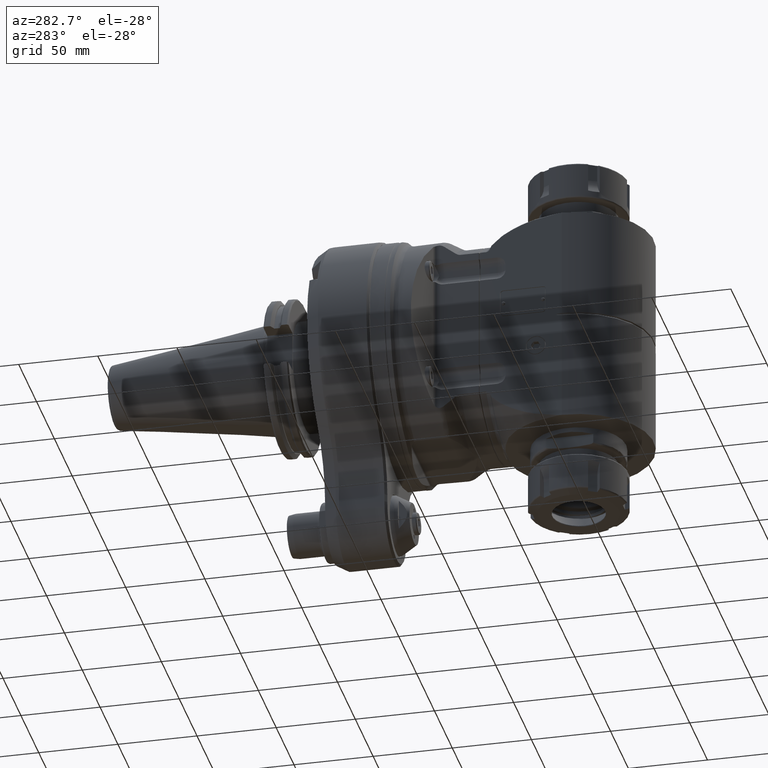
[diagram: clean part render]
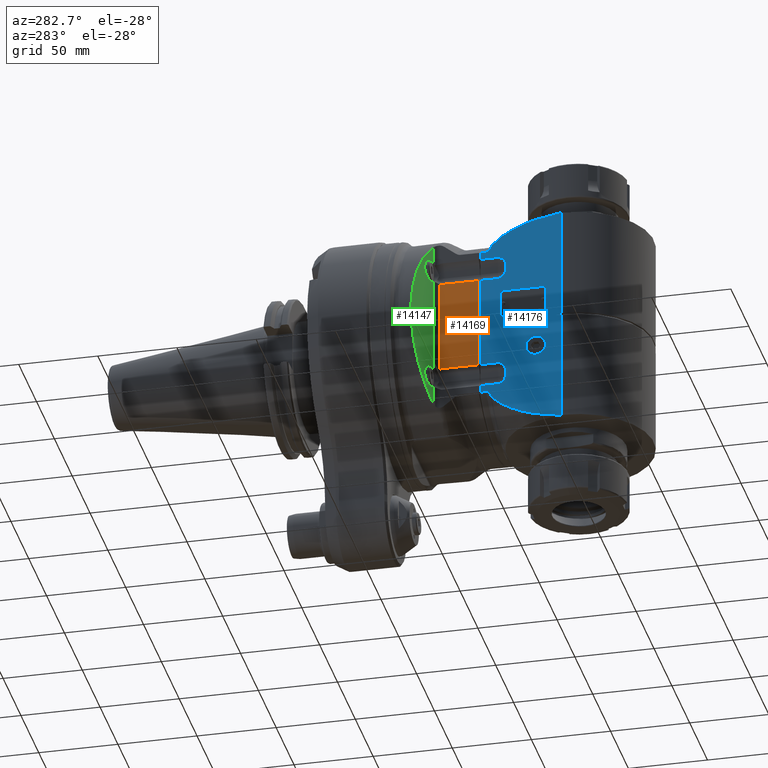
[diagram: same view with three faces highlighted in distinct colors, each labeled with its STEP entity id]
A machine part, auxiliary view with three faces highlighted in distinct colors.
Their STEP definitions:

[orange] entity #14169 — the highlighted planar face has unit normal (1, 0, -0).
#745=LINE('',#21997,#1716);
#746=LINE('',#22002,#1717);
#747=LINE('',#22004,#1718);
#748=LINE('',#22005,#1719);
#1716=VECTOR('',#17058,59.46724184201);
#1717=VECTOR('',#17063,22.5);
#1718=VECTOR('',#17064,58.69397595343);
#1719=VECTOR('',#17065,22.5);
#3030=FACE_OUTER_BOUND('',#3914,.T.);
#3914=EDGE_LOOP('',(#9569,#9570,#9571,#9572,#9573,#9574));
#4874=CIRCLE('',#15152,5.361902647382);
#4876=CIRCLE('',#15156,5.361902647382);
#5777=VERTEX_POINT('',#21968);
#5778=VERTEX_POINT('',#21977);
#5780=VERTEX_POINT('',#21988);
#5781=VERTEX_POINT('',#21999);
#5782=VERTEX_POINT('',#22001);
#5783=VERTEX_POINT('',#22003);
#7235=EDGE_CURVE('',#5778,#5777,#4874,.T.);
#7239=EDGE_CURVE('',#5780,#5777,#745,.T.);
#7240=EDGE_CURVE('',#5781,#5780,#4876,.T.);
#7241=EDGE_CURVE('',#5782,#5781,#746,.T.);
#7242=EDGE_CURVE('',#5782,#5783,#747,.T.);
#7243=EDGE_CURVE('',#5778,#5783,#748,.T.);
#9569=ORIENTED_EDGE('',*,*,#7239,.F.);
#9570=ORIENTED_EDGE('',*,*,#7240,.F.);
#9571=ORIENTED_EDGE('',*,*,#7241,.F.);
#9572=ORIENTED_EDGE('',*,*,#7242,.T.);
#9573=ORIENTED_EDGE('',*,*,#7243,.F.);
#9574=ORIENTED_EDGE('',*,*,#7235,.T.);
#13762=PLANE('',#15155);
#14169=ADVANCED_FACE('',(#3030),#13762,.F.);
#15152=AXIS2_PLACEMENT_3D('',#21978,#17052,#17053);
#15155=AXIS2_PLACEMENT_3D('',#21998,#17059,#17060);
#15156=AXIS2_PLACEMENT_3D('',#22000,#17061,#17062);
#17052=DIRECTION('center_axis',(0.,0.,1.));
#17053=DIRECTION('ref_axis',(1.457685938624E-13,1.,0.));
#17058=DIRECTION('',(0.,-1.,0.));
#17059=DIRECTION('center_axis',(0.,0.,1.));
#17060=DIRECTION('ref_axis',(-1.,0.,0.));
#17061=DIRECTION('center_axis',(0.,0.,-1.));
#17062=DIRECTION('ref_axis',(0.,-1.,0.));
#17063=DIRECTION('',(-0.999999999999998,5.78835255282699E-8,2.381699523034E-8));
#17064=DIRECTION('',(0.,-1.,3.781879605968E-13));
#17065=DIRECTION('',(0.999999999999998,5.78811284728799E-8,-2.381600962862E-8));
#21968=CARTESIAN_POINT('',(16.00083056686,-29.73362092102,-47.5));
#21977=CARTESIAN_POINT('',(18.,-29.34698927909,-47.5));
#21978=CARTESIAN_POINT('Origin',(18.,-34.70889192647,-47.5));
#21988=CARTESIAN_POINT('',(16.00083056686,29.73362092099,-47.5));
#21997=CARTESIAN_POINT('',(16.00083056686,29.73362092099,-47.5));
#21998=CARTESIAN_POINT('Origin',(39.5,-92.4000024,-47.5));
#21999=CARTESIAN_POINT('',(18.,29.34698927905,-47.5));
#22000=CARTESIAN_POINT('Origin',(18.,34.70889192643,-47.5));
#22001=CARTESIAN_POINT('',(40.4999999726826,29.3469887108963,-47.5000004198428));
#22002=CARTESIAN_POINT('',(40.5,29.34698797667,-47.50000053588));
#22003=CARTESIAN_POINT('',(40.4999999726854,-29.3469887109034,-47.500000419852));
#22004=CARTESIAN_POINT('',(40.5,29.34698797667,-47.50000053588));
#22005=CARTESIAN_POINT('',(18.,-29.34698927909,-47.5));

[blue] entity #14176 — the highlighted planar face has unit normal (-1, -0, 0).
#71=(
BOUNDED_CURVE()
B_SPLINE_CURVE(2,(#22041,#22042,#22043),.UNSPECIFIED.,.F.,.F.)
B_SPLINE_CURVE_WITH_KNOTS((3,3),(-9.20850164208115,-8.90663422543069),
 .UNSPECIFIED.)
CURVE()
GEOMETRIC_REPRESENTATION_ITEM()
RATIONAL_B_SPLINE_CURVE((1.06835361669176,1.07059800833599,1.07262179735841))
REPRESENTATION_ITEM('')
);
#72=(
BOUNDED_CURVE()
B_SPLINE_CURVE(2,(#22090,#22091,#22092),.UNSPECIFIED.,.F.,.F.)
B_SPLINE_CURVE_WITH_KNOTS((3,3),(-3.36802403999932,-3.06615662350035),
 .UNSPECIFIED.)
CURVE()
GEOMETRIC_REPRESENTATION_ITEM()
RATIONAL_B_SPLINE_CURVE((1.07262179735842,1.07059800833702,1.06835361669403))
REPRESENTATION_ITEM('')
);
#73=(
BOUNDED_CURVE()
B_SPLINE_CURVE(2,(#22094,#22095,#22096),.UNSPECIFIED.,.F.,.F.)
B_SPLINE_CURVE_WITH_KNOTS((3,3),(-2.32390436076378,-1.40210661032485),
 .UNSPECIFIED.)
CURVE()
GEOMETRIC_REPRESENTATION_ITEM()
RATIONAL_B_SPLINE_CURVE((1.01675488815444,1.01509302587261,1.01211336145827))
REPRESENTATION_ITEM('')
);
#74=(
BOUNDED_CURVE()
B_SPLINE_CURVE(2,(#22098,#22099,#22100),.UNSPECIFIED.,.F.,.F.)
B_SPLINE_CURVE_WITH_KNOTS((3,3),(-2.72627966043904,-1.92831632214769),
 .UNSPECIFIED.)
CURVE()
GEOMETRIC_REPRESENTATION_ITEM()
RATIONAL_B_SPLINE_CURVE((1.00936434365133,1.00907242761187,1.00814915872164))
REPRESENTATION_ITEM('')
);
#75=(
BOUNDED_CURVE()
B_SPLINE_CURVE(2,(#22102,#22103,#22104),.UNSPECIFIED.,.F.,.F.)
B_SPLINE_CURVE_WITH_KNOTS((3,3),(-3.27256923226984,-2.5114985808199),
 .UNSPECIFIED.)
CURVE()
GEOMETRIC_REPRESENTATION_ITEM()
RATIONAL_B_SPLINE_CURVE((1.00574794628003,1.00591953912748,1.00570044610198))
REPRESENTATION_ITEM('')
);
#76=(
BOUNDED_CURVE()
B_SPLINE_CURVE(2,(#22106,#22107,#22108),.UNSPECIFIED.,.F.,.F.)
B_SPLINE_CURVE_WITH_KNOTS((3,3),(-3.83391281879763,-3.06880419830725),
 .UNSPECIFIED.)
CURVE()
GEOMETRIC_REPRESENTATION_ITEM()
RATIONAL_B_SPLINE_CURVE((1.00270433215994,1.00300746067182,1.00308190097846))
REPRESENTATION_ITEM('')
);
#77=(
BOUNDED_CURVE()
B_SPLINE_CURVE(2,(#22110,#22111,#22112),.UNSPECIFIED.,.F.,.F.)
B_SPLINE_CURVE_WITH_KNOTS((3,3),(-5.17434692728903,-3.63606653249885),
 .UNSPECIFIED.)
CURVE()
GEOMETRIC_REPRESENTATION_ITEM()
RATIONAL_B_SPLINE_CURVE((1.0002003382374,1.00072703174868,1.00092285794198))
REPRESENTATION_ITEM('')
);
#78=(
BOUNDED_CURVE()
B_SPLINE_CURVE(2,(#22118,#22119,#22120),.UNSPECIFIED.,.F.,.F.)
B_SPLINE_CURVE_WITH_KNOTS((3,3),(-11.0217033634011,-9.42743535868119),
 .UNSPECIFIED.)
CURVE()
GEOMETRIC_REPRESENTATION_ITEM()
RATIONAL_B_SPLINE_CURVE((4.00690967119323,4.00690967126707,3.94399591643087))
REPRESENTATION_ITEM('')
);
#79=(
BOUNDED_CURVE()
B_SPLINE_CURVE(2,(#22141,#22142,#22143),.UNSPECIFIED.,.F.,.F.)
B_SPLINE_CURVE_WITH_KNOTS((3,3),(-12.6159683156422,-11.0217006697716),
 .UNSPECIFIED.)
CURVE()
GEOMETRIC_REPRESENTATION_ITEM()
RATIONAL_B_SPLINE_CURVE((3.94399510796533,4.00690884813621,4.00690884819256))
REPRESENTATION_ITEM('')
);
#80=(
BOUNDED_CURVE()
B_SPLINE_CURVE(2,(#22149,#22150,#22151),.UNSPECIFIED.,.F.,.F.)
B_SPLINE_CURVE_WITH_KNOTS((3,3),(-1.81518045007262,-0.276900309911036),
 .UNSPECIFIED.)
CURVE()
GEOMETRIC_REPRESENTATION_ITEM()
RATIONAL_B_SPLINE_CURVE((1.00092285718389,1.00072703085831,1.00020033730976))
REPRESENTATION_ITEM('')
);
#81=(
BOUNDED_CURVE()
B_SPLINE_CURVE(2,(#22153,#22154,#22155),.UNSPECIFIED.,.F.,.F.)
B_SPLINE_CURVE_WITH_KNOTS((3,3),(-2.57070157251778,-1.80559298000636),
 .UNSPECIFIED.)
CURVE()
GEOMETRIC_REPRESENTATION_ITEM()
RATIONAL_B_SPLINE_CURVE((1.00308189922704,1.00300745870221,1.00270432997269))
REPRESENTATION_ITEM('')
);
#82=(
BOUNDED_CURVE()
B_SPLINE_CURVE(2,(#22157,#22158,#22159),.UNSPECIFIED.,.F.,.F.)
B_SPLINE_CURVE_WITH_KNOTS((3,3),(-3.36509974349137,-2.6040291277666),
 .UNSPECIFIED.)
CURVE()
GEOMETRIC_REPRESENTATION_ITEM()
RATIONAL_B_SPLINE_CURVE((1.00570044364026,1.00591953629215,1.00574794307218))
REPRESENTATION_ITEM('')
);
#83=(
BOUNDED_CURVE()
B_SPLINE_CURVE(2,(#22161,#22162,#22163),.UNSPECIFIED.,.F.,.F.)
B_SPLINE_CURVE_WITH_KNOTS((3,3),(-4.26214340331695,-3.4641801092441),
 .UNSPECIFIED.)
CURVE()
GEOMETRIC_REPRESENTATION_ITEM()
RATIONAL_B_SPLINE_CURVE((1.0081491559285,1.00907242423772,1.00936433969759))
REPRESENTATION_ITEM('')
);
#84=(
BOUNDED_CURVE()
B_SPLINE_CURVE(2,(#22164,#22165,#22166),.UNSPECIFIED.,.F.,.F.)
B_SPLINE_CURVE_WITH_KNOTS((3,3),(-5.57063333432125,-4.64883564599867),
 .UNSPECIFIED.)
CURVE()
GEOMETRIC_REPRESENTATION_ITEM()
RATIONAL_B_SPLINE_CURVE((1.01211335817175,1.01509302149291,1.01675488268227))
REPRESENTATION_ITEM('')
);
#481=B_SPLINE_CURVE_WITH_KNOTS('',3,(#22045,#22046,#22047,#22048,#22049,
#22050,#22051,#22052),.UNSPECIFIED.,.F.,.F.,(4,2,2,4),(1.0483229430396,
1.14818978586264,1.26759418870886,1.37988682065929),.UNSPECIFIED.);
#482=B_SPLINE_CURVE_WITH_KNOTS('',3,(#22081,#22082,#22083,#22084,#22085,
#22086,#22087,#22088),.UNSPECIFIED.,.F.,.F.,(4,2,2,4),(0.716759065316074,
0.829051697370346,0.948456100216565,1.0483229430396),.UNSPECIFIED.);
#483=B_SPLINE_CURVE_WITH_KNOTS('',3,(#22122,#22123,#22124,#22125,#22126,
#22127,#22128,#22129,#22130,#22131,#22132,#22133,#22134,#22135,#22136,#22137,
#22138,#22139),.UNSPECIFIED.,.F.,.F.,(4,2,2,2,2,2,2,2,4),(-1.08121136599925,
-1.05543998562225,-1.03635562507101,-1.03134248581252,-1.02734061757133,
-1.02333874934299,-1.01832561003048,-0.99924124920771,-0.973469868439542),
 .UNSPECIFIED.);
#758=LINE('',#22035,#1729);
#759=LINE('',#22054,#1730);
#760=LINE('',#22055,#1731);
#761=LINE('',#22059,#1732);
#762=LINE('',#22063,#1733);
#763=LINE('',#22065,#1734);
#764=LINE('',#22067,#1735);
#765=LINE('',#22071,#1736);
#766=LINE('',#22075,#1737);
#767=LINE('',#22077,#1738);
#768=LINE('',#22079,#1739);
#769=LINE('',#22114,#1740);
#770=LINE('',#22116,#1741);
#771=LINE('',#22145,#1742);
#772=LINE('',#22147,#1743);
#773=LINE('',#22169,#1744);
#774=LINE('',#22173,#1745);
#775=LINE('',#22177,#1746);
#776=LINE('',#22181,#1747);
#1729=VECTOR('',#17091,10.5000000000001);
#1730=VECTOR('',#17098,3.571613276915);
#1731=VECTOR('',#17099,4.58873595803603);
#1732=VECTOR('',#17102,4.);
#1733=VECTOR('',#17105,10.5000000000001);
#1734=VECTOR('',#17106,58.6939759534);
#1735=VECTOR('',#17107,10.5000000000001);
#1736=VECTOR('',#17110,4.);
#1737=VECTOR('',#17113,10.5000000000001);
#1738=VECTOR('',#17114,4.58873517039303);
#1739=VECTOR('',#17115,3.571613276915);
#1740=VECTOR('',#17116,10.);
#1741=VECTOR('',#17117,69.83431457827);
#1742=VECTOR('',#17118,69.83431457183);
#1743=VECTOR('',#17119,10.);
#1744=VECTOR('',#17120,14.);
#1745=VECTOR('',#17123,25.);
#1746=VECTOR('',#17126,14.);
#1747=VECTOR('',#17129,25.);
#2891=FACE_BOUND('',#3922,.T.);
#2892=FACE_BOUND('',#3923,.T.);
#3037=FACE_OUTER_BOUND('',#3921,.T.);
#3921=EDGE_LOOP('',(#9599,#9600,#9601,#9602,#9603,#9604,#9605,#9606,#9607,
#9608,#9609,#9610,#9611,#9612,#9613,#9614,#9615,#9616,#9617,#9618,#9619,
#9620,#9621,#9622,#9623,#9624,#9625,#9626,#9627,#9628,#9629,#9630,#9631,
#9632,#9633,#9634));
#3922=EDGE_LOOP('',(#9635,#9636,#9637,#9638,#9639,#9640,#9641,#9642));
#3923=EDGE_LOOP('',(#9643));
#4881=CIRCLE('',#15168,5.361902495971);
#4882=CIRCLE('',#15169,5.361902511617);
#4883=CIRCLE('',#15170,5.361902783146);
#4884=CIRCLE('',#15171,5.361902798793);
#4885=CIRCLE('',#15172,2.);
#4886=CIRCLE('',#15173,2.);
#4887=CIRCLE('',#15174,2.);
#4888=CIRCLE('',#15175,2.);
#4889=CIRCLE('',#15176,6.25);
#5791=VERTEX_POINT('',#22033);
#5792=VERTEX_POINT('',#22034);
#5793=VERTEX_POINT('',#22039);
#5794=VERTEX_POINT('',#22040);
#5795=VERTEX_POINT('',#22044);
#5796=VERTEX_POINT('',#22053);
#5797=VERTEX_POINT('',#22056);
#5798=VERTEX_POINT('',#22058);
#5799=VERTEX_POINT('',#22060);
#5800=VERTEX_POINT('',#22062);
#5801=VERTEX_POINT('',#22064);
#5802=VERTEX_POINT('',#22066);
#5803=VERTEX_POINT('',#22068);
#5804=VERTEX_POINT('',#22070);
#5805=VERTEX_POINT('',#22072);
#5806=VERTEX_POINT('',#22074);
#5807=VERTEX_POINT('',#22076);
#5808=VERTEX_POINT('',#22078);
#5809=VERTEX_POINT('',#22080);
#5810=VERTEX_POINT('',#22089);
#5811=VERTEX_POINT('',#22093);
#5812=VERTEX_POINT('',#22097);
#5813=VERTEX_POINT('',#22101);
#5814=VERTEX_POINT('',#22105);
#5815=VERTEX_POINT('',#22109);
#5816=VERTEX_POINT('',#22113);
#5817=VERTEX_POINT('',#22115);
#5818=VERTEX_POINT('',#22117);
#5819=VERTEX_POINT('',#22121);
#5820=VERTEX_POINT('',#22140);
#5821=VERTEX_POINT('',#22144);
#5822=VERTEX_POINT('',#22146);
#5823=VERTEX_POINT('',#22148);
#5824=VERTEX_POINT('',#22152);
#5825=VERTEX_POINT('',#22156);
#5826=VERTEX_POINT('',#22160);
#5827=VERTEX_POINT('',#22167);
#5828=VERTEX_POINT('',#22168);
#5829=VERTEX_POINT('',#22170);
#5830=VERTEX_POINT('',#22172);
#5831=VERTEX_POINT('',#22174);
#5832=VERTEX_POINT('',#22176);
#5833=VERTEX_POINT('',#22178);
#5834=VERTEX_POINT('',#22180);
#5835=VERTEX_POINT('',#22183);
#7256=EDGE_CURVE('',#5791,#5792,#758,.T.);
#7259=EDGE_CURVE('',#5793,#5794,#71,.T.);
#7260=EDGE_CURVE('',#5795,#5793,#481,.T.);
#7261=EDGE_CURVE('',#5796,#5795,#759,.T.);
#7262=EDGE_CURVE('',#5792,#5796,#760,.T.);
#7263=EDGE_CURVE('',#5791,#5797,#4881,.T.);
#7264=EDGE_CURVE('',#5798,#5797,#761,.T.);
#7265=EDGE_CURVE('',#5798,#5799,#4882,.T.);
#7266=EDGE_CURVE('',#5800,#5799,#762,.T.);
#7267=EDGE_CURVE('',#5801,#5800,#763,.T.);
#7268=EDGE_CURVE('',#5802,#5801,#764,.T.);
#7269=EDGE_CURVE('',#5802,#5803,#4883,.T.);
#7270=EDGE_CURVE('',#5804,#5803,#765,.T.);
#7271=EDGE_CURVE('',#5804,#5805,#4884,.T.);
#7272=EDGE_CURVE('',#5806,#5805,#766,.T.);
#7273=EDGE_CURVE('',#5807,#5806,#767,.T.);
#7274=EDGE_CURVE('',#5808,#5807,#768,.T.);
#7275=EDGE_CURVE('',#5809,#5808,#482,.T.);
#7276=EDGE_CURVE('',#5810,#5809,#72,.T.);
#7277=EDGE_CURVE('',#5811,#5810,#73,.T.);
#7278=EDGE_CURVE('',#5812,#5811,#74,.T.);
#7279=EDGE_CURVE('',#5813,#5812,#75,.T.);
#7280=EDGE_CURVE('',#5814,#5813,#76,.T.);
#7281=EDGE_CURVE('',#5815,#5814,#77,.T.);
#7282=EDGE_CURVE('',#5815,#5816,#769,.T.);
#7283=EDGE_CURVE('',#5817,#5816,#770,.T.);
#7284=EDGE_CURVE('',#5817,#5818,#78,.T.);
#7285=EDGE_CURVE('',#5818,#5819,#483,.T.);
#7286=EDGE_CURVE('',#5819,#5820,#79,.T.);
#7287=EDGE_CURVE('',#5821,#5820,#771,.T.);
#7288=EDGE_CURVE('',#5822,#5821,#772,.T.);
#7289=EDGE_CURVE('',#5823,#5822,#80,.T.);
#7290=EDGE_CURVE('',#5824,#5823,#81,.T.);
#7291=EDGE_CURVE('',#5825,#5824,#82,.T.);
#7292=EDGE_CURVE('',#5826,#5825,#83,.T.);
#7293=EDGE_CURVE('',#5794,#5826,#84,.T.);
#7294=EDGE_CURVE('',#5827,#5828,#773,.T.);
#7295=EDGE_CURVE('',#5827,#5829,#4885,.T.);
#7296=EDGE_CURVE('',#5830,#5829,#774,.T.);
#7297=EDGE_CURVE('',#5830,#5831,#4886,.T.);
#7298=EDGE_CURVE('',#5832,#5831,#775,.T.);
#7299=EDGE_CURVE('',#5832,#5833,#4887,.T.);
#7300=EDGE_CURVE('',#5834,#5833,#776,.T.);
#7301=EDGE_CURVE('',#5834,#5828,#4888,.T.);
#7302=EDGE_CURVE('',#5835,#5835,#4889,.T.);
#9599=ORIENTED_EDGE('',*,*,#7259,.F.);
#9600=ORIENTED_EDGE('',*,*,#7260,.F.);
#9601=ORIENTED_EDGE('',*,*,#7261,.F.);
#9602=ORIENTED_EDGE('',*,*,#7262,.F.);
#9603=ORIENTED_EDGE('',*,*,#7256,.F.);
#9604=ORIENTED_EDGE('',*,*,#7263,.T.);
#9605=ORIENTED_EDGE('',*,*,#7264,.F.);
#9606=ORIENTED_EDGE('',*,*,#7265,.T.);
#9607=ORIENTED_EDGE('',*,*,#7266,.F.);
#9608=ORIENTED_EDGE('',*,*,#7267,.F.);
#9609=ORIENTED_EDGE('',*,*,#7268,.F.);
#9610=ORIENTED_EDGE('',*,*,#7269,.T.);
#9611=ORIENTED_EDGE('',*,*,#7270,.F.);
#9612=ORIENTED_EDGE('',*,*,#7271,.T.);
#9613=ORIENTED_EDGE('',*,*,#7272,.F.);
#9614=ORIENTED_EDGE('',*,*,#7273,.F.);
#9615=ORIENTED_EDGE('',*,*,#7274,.F.);
#9616=ORIENTED_EDGE('',*,*,#7275,.F.);
#9617=ORIENTED_EDGE('',*,*,#7276,.F.);
#9618=ORIENTED_EDGE('',*,*,#7277,.F.);
#9619=ORIENTED_EDGE('',*,*,#7278,.F.);
#9620=ORIENTED_EDGE('',*,*,#7279,.F.);
#9621=ORIENTED_EDGE('',*,*,#7280,.F.);
#9622=ORIENTED_EDGE('',*,*,#7281,.F.);
#9623=ORIENTED_EDGE('',*,*,#7282,.T.);
#9624=ORIENTED_EDGE('',*,*,#7283,.F.);
#9625=ORIENTED_EDGE('',*,*,#7284,.T.);
#9626=ORIENTED_EDGE('',*,*,#7285,.T.);
#9627=ORIENTED_EDGE('',*,*,#7286,.T.);
#9628=ORIENTED_EDGE('',*,*,#7287,.F.);
#9629=ORIENTED_EDGE('',*,*,#7288,.F.);
#9630=ORIENTED_EDGE('',*,*,#7289,.F.);
#9631=ORIENTED_EDGE('',*,*,#7290,.F.);
#9632=ORIENTED_EDGE('',*,*,#7291,.F.);
#9633=ORIENTED_EDGE('',*,*,#7292,.F.);
#9634=ORIENTED_EDGE('',*,*,#7293,.F.);
#9635=ORIENTED_EDGE('',*,*,#7294,.F.);
#9636=ORIENTED_EDGE('',*,*,#7295,.T.);
#9637=ORIENTED_EDGE('',*,*,#7296,.F.);
#9638=ORIENTED_EDGE('',*,*,#7297,.T.);
#9639=ORIENTED_EDGE('',*,*,#7298,.F.);
#9640=ORIENTED_EDGE('',*,*,#7299,.T.);
#9641=ORIENTED_EDGE('',*,*,#7300,.F.);
#9642=ORIENTED_EDGE('',*,*,#7301,.T.);
#9643=ORIENTED_EDGE('',*,*,#7302,.T.);
#13766=PLANE('',#15167);
#14176=ADVANCED_FACE('',(#3037,#2891,#2892),#13766,.T.);
#15167=AXIS2_PLACEMENT_3D('',#22038,#17096,#17097);
#15168=AXIS2_PLACEMENT_3D('',#22057,#17100,#17101);
#15169=AXIS2_PLACEMENT_3D('',#22061,#17103,#17104);
#15170=AXIS2_PLACEMENT_3D('',#22069,#17108,#17109);
#15171=AXIS2_PLACEMENT_3D('',#22073,#17111,#17112);
#15172=AXIS2_PLACEMENT_3D('',#22171,#17121,#17122);
#15173=AXIS2_PLACEMENT_3D('',#22175,#17124,#17125);
#15174=AXIS2_PLACEMENT_3D('',#22179,#17127,#17128);
#15175=AXIS2_PLACEMENT_3D('',#22182,#17130,#17131);
#15176=AXIS2_PLACEMENT_3D('',#22184,#17132,#17133);
#17091=DIRECTION('',(-0.999999999999991,-1.23795949829899E-7,-5.07543382982895E-8));
#17096=DIRECTION('center_axis',(0.,0.,-1.));
#17097=DIRECTION('ref_axis',(0.,-1.,0.));
#17098=DIRECTION('',(1.,-1.193650063436E-14,0.));
#17099=DIRECTION('',(0.,-0.999999999999993,1.16777194647699E-7));
#17100=DIRECTION('center_axis',(0.,0.,1.));
#17101=DIRECTION('ref_axis',(1.060135258027E-14,-1.,0.));
#17102=DIRECTION('',(-4.869871617075E-9,-1.,1.141902572499E-9));
#17103=DIRECTION('center_axis',(0.,0.,1.));
#17104=DIRECTION('ref_axis',(1.,-3.911512141336E-9,0.));
#17105=DIRECTION('',(0.999999999999991,-1.24274211069999E-7,5.13176369546895E-8));
#17106=DIRECTION('',(0.,-1.,-6.180056142278E-13));
#17107=DIRECTION('',(-0.999999999999991,-1.23795960995499E-7,-5.07543464187795E-8));
#17108=DIRECTION('center_axis',(0.,0.,1.));
#17109=DIRECTION('ref_axis',(2.517821102963E-14,-1.,0.));
#17110=DIRECTION('',(-4.869871617075E-9,-1.,1.141904348856E-9));
#17111=DIRECTION('center_axis',(0.,0.,1.));
#17112=DIRECTION('ref_axis',(1.,-3.911492054306E-9,0.));
#17113=DIRECTION('',(0.999999999999991,-1.24272847166299E-7,5.13170793478195E-8));
#17114=DIRECTION('',(0.,-0.999999999999993,-1.16783860639899E-7));
#17115=DIRECTION('',(-1.,-2.387300126873E-14,0.));
#17116=DIRECTION('',(1.,0.,0.));
#17117=DIRECTION('',(-1.985751413415E-8,1.,1.546166241288E-9));
#17118=DIRECTION('',(-1.984956993891E-8,1.,1.546167157153E-9));
#17119=DIRECTION('',(1.,0.,0.));
#17120=DIRECTION('',(0.,1.,-1.877862944509E-14));
#17121=DIRECTION('center_axis',(0.,2.985806046686E-14,1.));
#17122=DIRECTION('ref_axis',(-1.,0.,0.));
#17123=DIRECTION('',(-1.,0.,2.017941369559E-14));
#17124=DIRECTION('center_axis',(0.,2.985806046686E-14,1.));
#17125=DIRECTION('ref_axis',(0.,-1.,2.985806046686E-14));
#17126=DIRECTION('',(0.,-1.,1.877862944509E-14));
#17127=DIRECTION('center_axis',(0.,2.985806046686E-14,1.));
#17128=DIRECTION('ref_axis',(1.,0.,0.));
#17129=DIRECTION('',(1.,0.,-2.017941369559E-14));
#17130=DIRECTION('center_axis',(0.,2.985806046686E-14,1.));
#17131=DIRECTION('ref_axis',(0.,1.,-2.985806046686E-14));
#17132=DIRECTION('center_axis',(0.,0.,1.));
#17133=DIRECTION('ref_axis',(0.,-1.,0.));
#22033=CARTESIAN_POINT('',(52.,-44.0707941811446,-47.500000001306));
#22034=CARTESIAN_POINT('',(41.5000000273152,-44.0707947482345,-47.500000419853));
#22035=CARTESIAN_POINT('',(52.,-44.07079418251,-47.50000000294));
#22038=CARTESIAN_POINT('Origin',(27.30028251458,-1.693516507581E-11,-47.5));
#22039=CARTESIAN_POINT('',(47.6696894047447,-50.7346033168371,-47.500000064989));
#22040=CARTESIAN_POINT('',(48.5357150971832,-52.7707309128476,-47.4999998914786));
#22041=CARTESIAN_POINT('Ctrl Pts',(47.6696893829666,-50.7346033260161,-47.5));
#22042=CARTESIAN_POINT('Ctrl Pts',(48.0941841180953,-51.7417981143213,-47.5));
#22043=CARTESIAN_POINT('Ctrl Pts',(48.535715064998,-52.7707309266815,-47.5));
#22044=CARTESIAN_POINT('',(45.07161327692,-48.65953144041,-47.5));
#22045=CARTESIAN_POINT('Ctrl Pts',(45.07161327692,-48.6595314404074,-47.5));
#22046=CARTESIAN_POINT('Ctrl Pts',(45.4045027529968,-48.6595314404074,-47.5));
#22047=CARTESIAN_POINT('Ctrl Pts',(45.7915918957764,-48.758203504687,-47.5));
#22048=CARTESIAN_POINT('Ctrl Pts',(46.4446655563644,-49.0864041652508,-47.5));
#22049=CARTESIAN_POINT('Ctrl Pts',(46.806917016625,-49.3976797059604,-47.5));
#22050=CARTESIAN_POINT('Ctrl Pts',(47.2957804725811,-49.9955894247337,-47.5));
#22051=CARTESIAN_POINT('Ctrl Pts',(47.5149229160609,-50.3673904003756,-47.5));
#22052=CARTESIAN_POINT('Ctrl Pts',(47.6696893829711,-50.7346033260138,-47.5));
#22053=CARTESIAN_POINT('',(41.5,-48.65953144041,-47.5));
#22054=CARTESIAN_POINT('',(41.5,-48.65953144041,-47.5));
#22055=CARTESIAN_POINT('',(41.5,-44.07079548237,-47.50000053586));
#22056=CARTESIAN_POINT('',(57.3619024948169,-38.7088917050511,-47.4999999986247));
#22057=CARTESIAN_POINT('Origin',(52.,-38.70889168408,-47.5));
#22058=CARTESIAN_POINT('',(57.3619025122548,-34.7088917050511,-47.5000000007607));
#22059=CARTESIAN_POINT('',(57.36190251353,-34.70889170505,-47.50000000228));
#22060=CARTESIAN_POINT('',(52.,-29.3469891739469,-47.4999999982336));
#22061=CARTESIAN_POINT('Origin',(52.,-34.70889168408,-47.5));
#22062=CARTESIAN_POINT('',(41.5000000273169,-29.3469886042389,-47.5000004198828));
#22063=CARTESIAN_POINT('',(41.5,-29.34698787005,-47.5000005359));
#22064=CARTESIAN_POINT('',(41.5000000273151,29.3469888174878,-47.5000004198531));
#22065=CARTESIAN_POINT('',(41.5,29.34698808335,-47.50000053586));
#22066=CARTESIAN_POINT('',(52.,29.3469893845786,-47.5000000013058));
#22067=CARTESIAN_POINT('',(52.,29.34698938321,-47.50000000294));
#22068=CARTESIAN_POINT('',(57.3619027819945,34.7088921478489,-47.4999999986254));
#22069=CARTESIAN_POINT('Origin',(52.,34.70889216882,-47.5));
#22070=CARTESIAN_POINT('',(57.3619027994313,38.7088921478489,-47.5000000007597));
#22071=CARTESIAN_POINT('',(57.36190280071,38.70889214785,-47.50000000228));
#22072=CARTESIAN_POINT('',(52.,44.0707949661291,-47.4999999982328));
#22073=CARTESIAN_POINT('Origin',(52.,38.70889216882,-47.5));
#22074=CARTESIAN_POINT('',(41.5000000273164,44.0707955358301,-47.5000004198767));
#22075=CARTESIAN_POINT('',(41.5,44.07079627001,-47.50000053589));
#22076=CARTESIAN_POINT('',(41.5,48.65953144041,-47.5));
#22077=CARTESIAN_POINT('',(41.5,48.65953144041,-47.5));
#22078=CARTESIAN_POINT('',(45.07161327692,48.65953144041,-47.5));
#22079=CARTESIAN_POINT('',(45.07161327692,48.65953144041,-47.5));
#22080=CARTESIAN_POINT('',(47.6696894050854,50.7346033178936,-47.5000000647239));
#22081=CARTESIAN_POINT('Ctrl Pts',(47.6696893834007,50.7346033270329,-47.5));
#22082=CARTESIAN_POINT('Ctrl Pts',(47.5149229164543,50.3673904010696,-47.5));
#22083=CARTESIAN_POINT('Ctrl Pts',(47.2957804728002,49.9955894250017,-47.5));
#22084=CARTESIAN_POINT('Ctrl Pts',(46.806917016625,49.3976797059604,-47.5));
#22085=CARTESIAN_POINT('Ctrl Pts',(46.4446655563644,49.0864041652508,-47.5));
#22086=CARTESIAN_POINT('Ctrl Pts',(45.7915918957764,48.758203504687,-47.5));
#22087=CARTESIAN_POINT('Ctrl Pts',(45.4045027529968,48.6595314404074,-47.5));
#22088=CARTESIAN_POINT('Ctrl Pts',(45.07161327692,48.6595314404074,-47.5));
#22089=CARTESIAN_POINT('',(48.5357150971863,52.7707309128536,-47.499999891477));
#22090=CARTESIAN_POINT('Ctrl Pts',(48.5357150650007,52.7707309266877,-47.5));
#22091=CARTESIAN_POINT('Ctrl Pts',(48.0941841183199,51.7417981148448,-47.5));
#22092=CARTESIAN_POINT('Ctrl Pts',(47.6696893833961,50.7346033270352,-47.5));
#22093=CARTESIAN_POINT('',(54.4659591804017,58.040934233732,-47.4999998778047));
#22094=CARTESIAN_POINT('Ctrl Pts',(54.4659592011542,58.0409342104054,-47.5));
#22095=CARTESIAN_POINT('Ctrl Pts',(51.3598159806963,55.333637937399,-47.5));
#22096=CARTESIAN_POINT('Ctrl Pts',(48.5357151982457,52.7707308015254,-47.5));
#22097=CARTESIAN_POINT('',(60.8994797052228,61.868812944977,-47.4999999605483));
#22098=CARTESIAN_POINT('Ctrl Pts',(60.899479713481,61.8688129312276,-47.5));
#22099=CARTESIAN_POINT('Ctrl Pts',(57.5800308451662,59.9173453046548,-47.5));
#22100=CARTESIAN_POINT('Ctrl Pts',(54.4659592482141,58.0409341217181,-47.5));
#22101=CARTESIAN_POINT('',(67.7681751170833,64.9923072657518,-47.4999999904398));
#22102=CARTESIAN_POINT('Ctrl Pts',(67.7681751184719,64.9923072627412,-47.5));
#22103=CARTESIAN_POINT('Ctrl Pts',(64.2492690805049,63.4059268510277,-47.5));
#22104=CARTESIAN_POINT('Ctrl Pts',(60.8994797210765,61.8688129107356,-47.5));
#22105=CARTESIAN_POINT('',(75.23227668629,67.4536878194519,-47.4999999988644));
#22106=CARTESIAN_POINT('Ctrl Pts',(75.2322766863362,67.4536878193153,-47.5));
#22107=CARTESIAN_POINT('Ctrl Pts',(71.4308693534247,66.2078970437754,-47.5));
#22108=CARTESIAN_POINT('Ctrl Pts',(67.768175120166,64.9923072565344,-47.5));
#22109=CARTESIAN_POINT('',(91.0727604617255,70.5000386733255,-47.5000555053216));
#22110=CARTESIAN_POINT('Ctrl Pts',(91.0723633035705,70.5000002213855,-47.5));
#22111=CARTESIAN_POINT('Ctrl Pts',(82.9774285042475,68.954031312774,-47.5));
#22112=CARTESIAN_POINT('Ctrl Pts',(75.232276686558,67.4536878180726,-47.5));
#22113=CARTESIAN_POINT('',(92.99999861249,70.5000002213848,-47.4999998359352));
#22114=CARTESIAN_POINT('',(90.38237025729,70.5000002213855,-47.5));
#22115=CARTESIAN_POINT('',(92.9999999995228,0.665685643099187,-47.4999999984496));
#22116=CARTESIAN_POINT('',(92.99999999922,0.6656856431145,-47.49999999845));
#22117=CARTESIAN_POINT('',(89.94471054046,0.2828429148168,-47.5));
#22118=CARTESIAN_POINT('Ctrl Pts',(93.0000000004276,0.665685644637336,-47.5));
#22119=CARTESIAN_POINT('Ctrl Pts',(91.496341302144,0.665685638071512,-47.5));
#22120=CARTESIAN_POINT('Ctrl Pts',(89.9447105404628,0.282842914821026,-47.5));
#22121=CARTESIAN_POINT('',(89.94471055345,-0.2828425101325,-47.5));
#22122=CARTESIAN_POINT('Ctrl Pts',(89.94471054046,0.282842914816858,-47.5));
#22123=CARTESIAN_POINT('Ctrl Pts',(89.8595696844408,0.261835624949168,-47.5));
#22124=CARTESIAN_POINT('Ctrl Pts',(89.7768581339966,0.236676003013135,-47.5));
#22125=CARTESIAN_POINT('Ctrl Pts',(89.6408333590435,0.174601589951264,-47.5));
#22126=CARTESIAN_POINT('Ctrl Pts',(89.5745030782692,0.136816686420968,-47.5));
#22127=CARTESIAN_POINT('Ctrl Pts',(89.5240987623648,0.0742746168891248,
-47.5));
#22128=CARTESIAN_POINT('Ctrl Pts',(89.5135845556563,0.0571995912408357,
-47.5));
#22129=CARTESIAN_POINT('Ctrl Pts',(89.5030646788536,0.0290511242400585,
-47.5));
#22130=CARTESIAN_POINT('Ctrl Pts',(89.4999999997247,0.0133397610734231,
-47.5));
#22131=CARTESIAN_POINT('Ctrl Pts',(89.5000000002753,-0.013339360491681,
-47.5));
#22132=CARTESIAN_POINT('Ctrl Pts',(89.5030646800226,-0.0290507234853497,
-47.5));
#22133=CARTESIAN_POINT('Ctrl Pts',(89.5135845578523,-0.0571991902488476,
-47.5));
#22134=CARTESIAN_POINT('Ctrl Pts',(89.5240987652015,-0.0742742157564104,
-47.5));
#22135=CARTESIAN_POINT('Ctrl Pts',(89.5745030834642,-0.136816284781345,
-47.5));
#22136=CARTESIAN_POINT('Ctrl Pts',(89.6408333658138,-0.174601187740472,
-47.5));
#22137=CARTESIAN_POINT('Ctrl Pts',(89.7768581437121,-0.23667559966924,-47.5));
#22138=CARTESIAN_POINT('Ctrl Pts',(89.8595696957974,-0.261835220964448,
-47.5));
#22139=CARTESIAN_POINT('Ctrl Pts',(89.944710553453,-0.282842510132939,-47.5));
#22140=CARTESIAN_POINT('',(93.0000000010996,-0.66568520680064,-47.5000000015515));
#22141=CARTESIAN_POINT('Ctrl Pts',(89.9447105534533,-0.282842510134806,
-47.5000000000001));
#22142=CARTESIAN_POINT('Ctrl Pts',(91.4963413096689,-0.665685211937013,
-47.5000000000001));
#22143=CARTESIAN_POINT('Ctrl Pts',(93.0000000004085,-0.665685205266428,
-47.5000000000001));
#22144=CARTESIAN_POINT('',(93.00000138751,-70.4999997786152,-47.5000001640647));
#22145=CARTESIAN_POINT('',(93.00000138751,-70.49999977862,-47.50000010953));
#22146=CARTESIAN_POINT('',(91.072774360512,-70.5000398006623,-47.5000577717705));
#22147=CARTESIAN_POINT('',(26.28282075729,-70.4999997786145,-47.5));
#22148=CARTESIAN_POINT('',(75.2322766862888,-67.4536878194485,-47.4999999988651));
#22149=CARTESIAN_POINT('Ctrl Pts',(75.2322766865577,-67.453687818065,-47.5));
#22150=CARTESIAN_POINT('Ctrl Pts',(82.9774273955072,-68.9540310979882,-47.5));
#22151=CARTESIAN_POINT('Ctrl Pts',(91.072360985191,-70.4999997786145,-47.5));
#22152=CARTESIAN_POINT('',(67.7681751170813,-64.9923072657508,-47.4999999904401));
#22153=CARTESIAN_POINT('Ctrl Pts',(67.7681751201638,-64.9923072565337,-47.5));
#22154=CARTESIAN_POINT('Ctrl Pts',(71.4308693534227,-66.2078970437748,-47.5));
#22155=CARTESIAN_POINT('Ctrl Pts',(75.2322766863342,-67.4536878193146,-47.5));
#22156=CARTESIAN_POINT('',(60.8994797052229,-61.868812944977,-47.4999999605483));
#22157=CARTESIAN_POINT('Ctrl Pts',(60.8994797210765,-61.8688129107357,-47.5));
#22158=CARTESIAN_POINT('Ctrl Pts',(64.2492690805039,-63.4059268510272,-47.5));
#22159=CARTESIAN_POINT('Ctrl Pts',(67.7681751184698,-64.9923072627403,-47.5));
#22160=CARTESIAN_POINT('',(54.4659591804017,-58.040934233732,-47.4999998778047));
#22161=CARTESIAN_POINT('Ctrl Pts',(54.4659592482141,-58.0409341217182,-47.5));
#22162=CARTESIAN_POINT('Ctrl Pts',(57.5800308451662,-59.9173453046548,-47.5));
#22163=CARTESIAN_POINT('Ctrl Pts',(60.899479713481,-61.8688129312276,-47.5));
#22164=CARTESIAN_POINT('Ctrl Pts',(48.535715198241,-52.7707308015211,-47.5));
#22165=CARTESIAN_POINT('Ctrl Pts',(51.3598159806937,-55.3336379373967,-47.5));
#22166=CARTESIAN_POINT('Ctrl Pts',(54.4659592011542,-58.0409342104055,-47.5));
#22167=CARTESIAN_POINT('',(54.00000007697,-18.49999969705,-47.5));
#22168=CARTESIAN_POINT('',(54.00000007697,-4.499999697053,-47.5));
#22169=CARTESIAN_POINT('',(54.00000007697,-18.49999969705,-47.5));
#22170=CARTESIAN_POINT('',(56.00000007697,-20.49999969705,-47.5));
#22171=CARTESIAN_POINT('Origin',(56.00000007697,-18.49999969705,-47.5));
#22172=CARTESIAN_POINT('',(81.00000007697,-20.49999969705,-47.5));
#22173=CARTESIAN_POINT('',(81.00000007697,-20.49999969705,-47.5));
#22174=CARTESIAN_POINT('',(83.00000007697,-18.49999969705,-47.5));
#22175=CARTESIAN_POINT('Origin',(81.00000007697,-18.49999969705,-47.5));
#22176=CARTESIAN_POINT('',(83.00000007697,-4.499999697053,-47.5));
#22177=CARTESIAN_POINT('',(83.00000007697,-4.499999697053,-47.5));
#22178=CARTESIAN_POINT('',(81.00000007697,-2.499999697053,-47.5));
#22179=CARTESIAN_POINT('Origin',(81.00000007697,-4.499999697053,-47.5));
#22180=CARTESIAN_POINT('',(56.00000007697,-2.499999697053,-47.5));
#22181=CARTESIAN_POINT('',(56.00000007697,-2.499999697053,-47.5));
#22182=CARTESIAN_POINT('Origin',(56.00000007697,-4.499999697053,-47.5));
#22183=CARTESIAN_POINT('',(76.5,26.25000022138,-47.5));
#22184=CARTESIAN_POINT('Origin',(76.5,20.00000022138,-47.5));

[green] entity #14147 — the highlighted planar face has unit normal (0.342, 0.9397, -0).
#665=ELLIPSE('',#15088,78.7491551632184,74.);
#667=ELLIPSE('',#15118,7.18319996421249,6.75);
#668=ELLIPSE('',#15119,7.18319996421249,6.75);
#669=ELLIPSE('',#15120,7.18319996421249,6.75);
#670=ELLIPSE('',#15121,7.18319996421249,6.75);
#720=LINE('',#21773,#1691);
#721=LINE('',#21795,#1692);
#722=LINE('',#21800,#1693);
#1691=VECTOR('',#16957,11.37432940568);
#1692=VECTOR('',#16964,11.37432940568);
#1693=VECTOR('',#16969,60.72118127973);
#3008=FACE_OUTER_BOUND('',#3890,.T.);
#3890=EDGE_LOOP('',(#9453,#9454,#9455,#9456,#9457,#9458,#9459,#9460));
#5703=VERTEX_POINT('',#21466);
#5704=VERTEX_POINT('',#21477);
#5740=VERTEX_POINT('',#21772);
#5742=VERTEX_POINT('',#21790);
#5743=VERTEX_POINT('',#21791);
#5744=VERTEX_POINT('',#21793);
#5745=VERTEX_POINT('',#21796);
#5746=VERTEX_POINT('',#21798);
#7128=EDGE_CURVE('',#5704,#5703,#665,.T.);
#7178=EDGE_CURVE('',#5740,#5703,#720,.T.);
#7181=EDGE_CURVE('',#5742,#5743,#667,.T.);
#7182=EDGE_CURVE('',#5743,#5744,#668,.T.);
#7183=EDGE_CURVE('',#5704,#5744,#721,.T.);
#7184=EDGE_CURVE('',#5740,#5745,#669,.T.);
#7185=EDGE_CURVE('',#5745,#5746,#670,.T.);
#7186=EDGE_CURVE('',#5742,#5746,#722,.T.);
#9453=ORIENTED_EDGE('',*,*,#7181,.T.);
#9454=ORIENTED_EDGE('',*,*,#7182,.T.);
#9455=ORIENTED_EDGE('',*,*,#7183,.F.);
#9456=ORIENTED_EDGE('',*,*,#7128,.T.);
#9457=ORIENTED_EDGE('',*,*,#7178,.F.);
#9458=ORIENTED_EDGE('',*,*,#7184,.T.);
#9459=ORIENTED_EDGE('',*,*,#7185,.T.);
#9460=ORIENTED_EDGE('',*,*,#7186,.F.);
#13751=PLANE('',#15117);
#14147=ADVANCED_FACE('',(#3008),#13751,.F.);
#15088=AXIS2_PLACEMENT_3D('',#21478,#16890,#16891);
#15117=AXIS2_PLACEMENT_3D('',#21789,#16958,#16959);
#15118=AXIS2_PLACEMENT_3D('',#21792,#16960,#16961);
#15119=AXIS2_PLACEMENT_3D('',#21794,#16962,#16963);
#15120=AXIS2_PLACEMENT_3D('',#21797,#16965,#16966);
#15121=AXIS2_PLACEMENT_3D('',#21799,#16967,#16968);
#16890=DIRECTION('center_axis',(0.939692620785897,0.,-0.342020143325699));
#16891=DIRECTION('ref_axis',(0.342020143325699,-1.12785771207228E-16,0.939692620785897));
#16957=DIRECTION('',(3.748138692406E-14,1.,1.080713322977E-13));
#16958=DIRECTION('center_axis',(-0.939692620785897,0.,0.342020143325699));
#16959=DIRECTION('ref_axis',(-0.342020143325699,0.,-0.939692620785897));
#16960=DIRECTION('center_axis',(-0.939692620785897,0.,0.342020143325699));
#16961=DIRECTION('ref_axis',(0.342020143325699,0.,0.939692620785897));
#16962=DIRECTION('center_axis',(-0.939692620785897,0.,0.342020143325699));
#16963=DIRECTION('ref_axis',(0.342020143325699,0.,0.939692620785897));
#16964=DIRECTION('',(0.,1.,1.124441607722E-14));
#16965=DIRECTION('center_axis',(-0.939692620785897,0.,0.342020143325699));
#16966=DIRECTION('ref_axis',(0.342020143325699,0.,0.939692620785897));
#16967=DIRECTION('center_axis',(-0.939692620785897,0.,0.342020143325699));
#16968=DIRECTION('ref_axis',(0.342020143325699,0.,0.939692620785897));
#16969=DIRECTION('',(0.,1.,0.));
#21466=CARTESIAN_POINT('',(12.24206008372,54.43152261875,-50.1319194267));
#21477=CARTESIAN_POINT('',(12.24206008372,-54.43152261875,-50.1319194267));
#21478=CARTESIAN_POINT('Origin',(30.4885865416663,0.,0.));
#21772=CARTESIAN_POINT('',(12.24206008372,43.05719321307,-50.1319194267));
#21773=CARTESIAN_POINT('',(12.24206008372,43.05719321307,-50.1319194267));
#21789=CARTESIAN_POINT('Origin',(13.20000041402,-92.4000024,-47.5));
#21790=CARTESIAN_POINT('',(12.24206008372,-30.36059063987,-50.1319194267));
#21791=CARTESIAN_POINT('',(11.4071810082546,-43.45889192647,-52.4257308345));
#21792=CARTESIAN_POINT('Origin',(11.4071810082546,-36.70889192647,-52.4257308345));
#21793=CARTESIAN_POINT('',(12.24206008372,-43.05719321307,-50.1319194267));
#21794=CARTESIAN_POINT('Origin',(11.4071810082546,-36.70889192647,-52.4257308345));
#21795=CARTESIAN_POINT('',(12.24206008372,-54.43152261875,-50.1319194267));
#21796=CARTESIAN_POINT('',(11.4071810082546,29.95889192647,-52.4257308345));
#21797=CARTESIAN_POINT('Origin',(11.4071810082546,36.70889192647,-52.4257308345));
#21798=CARTESIAN_POINT('',(12.24206008372,30.36059063987,-50.1319194267));
#21799=CARTESIAN_POINT('Origin',(11.4071810082546,36.70889192647,-52.4257308345));
#21800=CARTESIAN_POINT('',(12.24206008372,-30.36059063987,-50.1319194267));